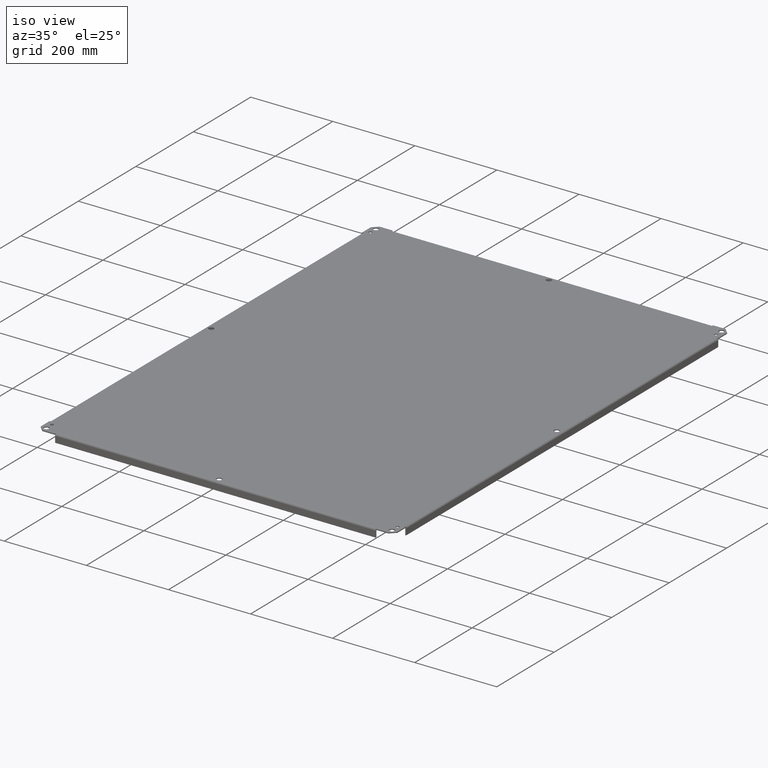
[diagram: clean part render]
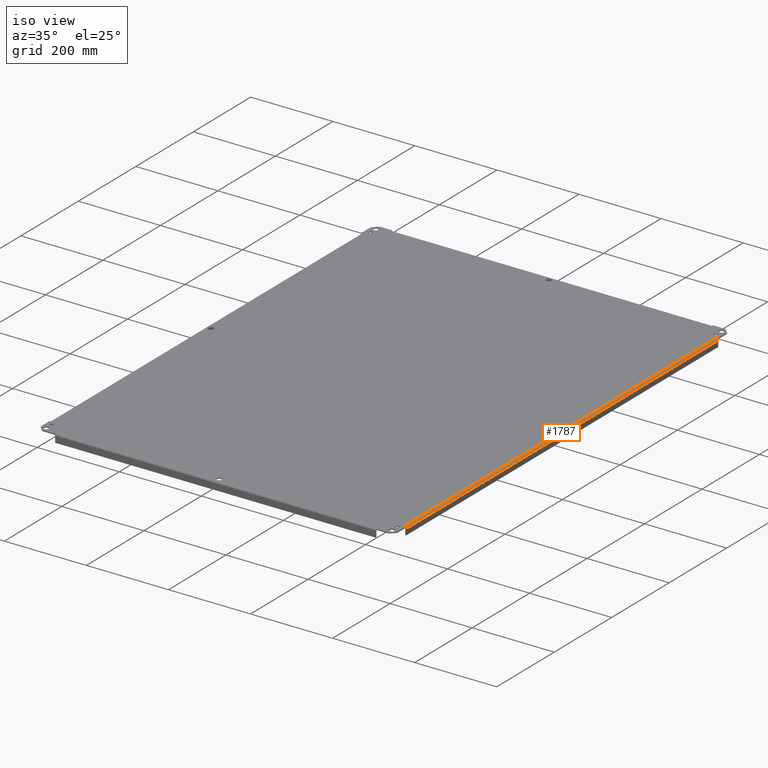
[diagram: same view with one face highlighted and labeled with its STEP entity id]
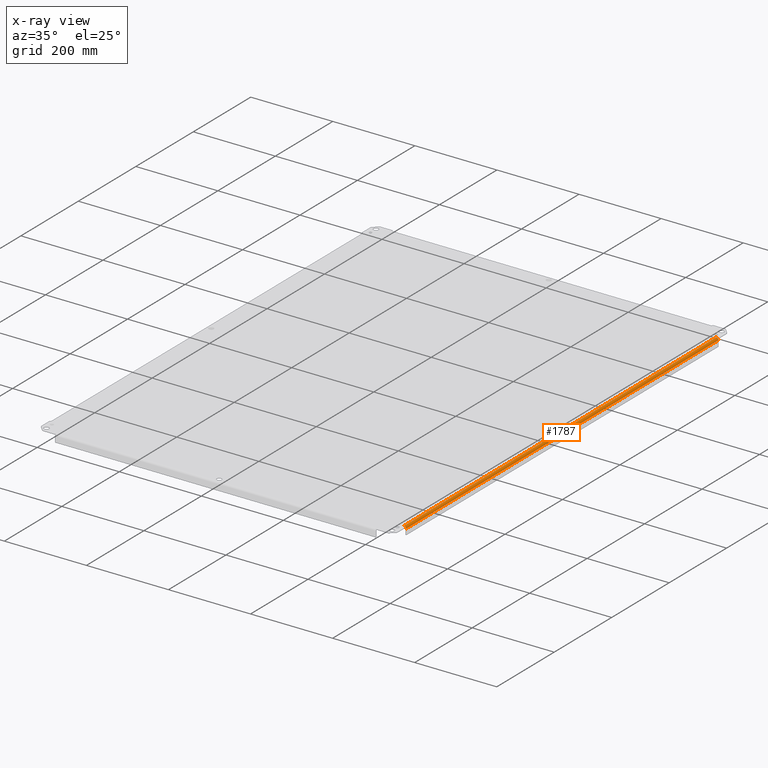
[diagram: x-ray of the same camera — body ghosted, the highlighted face saturated]
A machine part, iso view. The second image highlights one B-rep face of the part: STEP entity #1787.
The next image is the same camera in x-ray: the body ghosted, the highlighted face saturated — about 0% of this face is hidden behind the body in this view.
In plain terms, the highlighted cylindrical surface (edge-blend (fillet) strip) has radius 4.7625 mm, axis along (-0, 1, 0).
Its self-contained STEP definition (entity closure, byte-faithful):
#995=CARTESIAN_POINT('',(34.01250000000001,1.717999999999995,0.09375));
#996=VERTEX_POINT('',#995);
#1003=CARTESIAN_POINT('',(34.012500000000003,44.482000000000006,0.09375));
#1004=VERTEX_POINT('',#1003);
#1005=CARTESIAN_POINT('',(34.01250000000001,1.717999999999995,0.09375));
#1006=DIRECTION('',(0.0,1.0,0.0));
#1007=VECTOR('',#1006,42.76400000000001);
#1008=LINE('',#1005,#1007);
#1009=EDGE_CURVE('',#996,#1004,#1008,.T.);
#1601=CARTESIAN_POINT('',(34.199999999999996,1.717999999999995,-0.093750000000019));
#1602=VERTEX_POINT('',#1601);
#1603=CARTESIAN_POINT('',(34.199999999999989,44.481999999999999,-0.093750000000012));
#1604=VERTEX_POINT('',#1603);
#1605=CARTESIAN_POINT('',(34.199999999999989,1.717999999999989,-0.093750000000015));
#1606=DIRECTION('',(0.0,1.0,0.0));
#1607=VECTOR('',#1606,42.76400000000001);
#1608=LINE('',#1605,#1607);
#1609=EDGE_CURVE('',#1602,#1604,#1608,.T.);
#1658=CARTESIAN_POINT('',(34.012499999999996,1.717999999999995,-0.09375));
#1659=DIRECTION('',(0.0,1.0,0.0));
#1660=DIRECTION('',(0.0,0.0,1.0));
#1661=AXIS2_PLACEMENT_3D('',#1658,#1659,#1660);
#1662=CIRCLE('',#1661,0.1875);
#1663=EDGE_CURVE('',#996,#1602,#1662,.T.);
#1754=CARTESIAN_POINT('',(34.012499999999989,44.481999999999999,-0.09375));
#1755=DIRECTION('',(0.0,1.0,0.0));
#1756=DIRECTION('',(0.0,0.0,1.0));
#1757=AXIS2_PLACEMENT_3D('',#1754,#1755,#1756);
#1758=CIRCLE('',#1757,0.1875);
#1759=EDGE_CURVE('',#1004,#1604,#1758,.T.);
#1776=CARTESIAN_POINT('',(34.012499999999989,23.099999999999998,-0.09375));
#1777=DIRECTION('',(-1.308302E-016,1.0,0.0));
#1778=DIRECTION('',(0.0,0.0,1.0));
#1779=AXIS2_PLACEMENT_3D('',#1776,#1777,#1778);
#1780=CYLINDRICAL_SURFACE('',#1779,0.1875);
#1781=ORIENTED_EDGE('',*,*,#1609,.T.);
#1782=ORIENTED_EDGE('',*,*,#1759,.F.);
#1783=ORIENTED_EDGE('',*,*,#1009,.F.);
#1784=ORIENTED_EDGE('',*,*,#1663,.T.);
#1785=EDGE_LOOP('',(#1781,#1782,#1783,#1784));
#1786=FACE_OUTER_BOUND('',#1785,.T.);
#1787=ADVANCED_FACE('',(#1786),#1780,.T.);